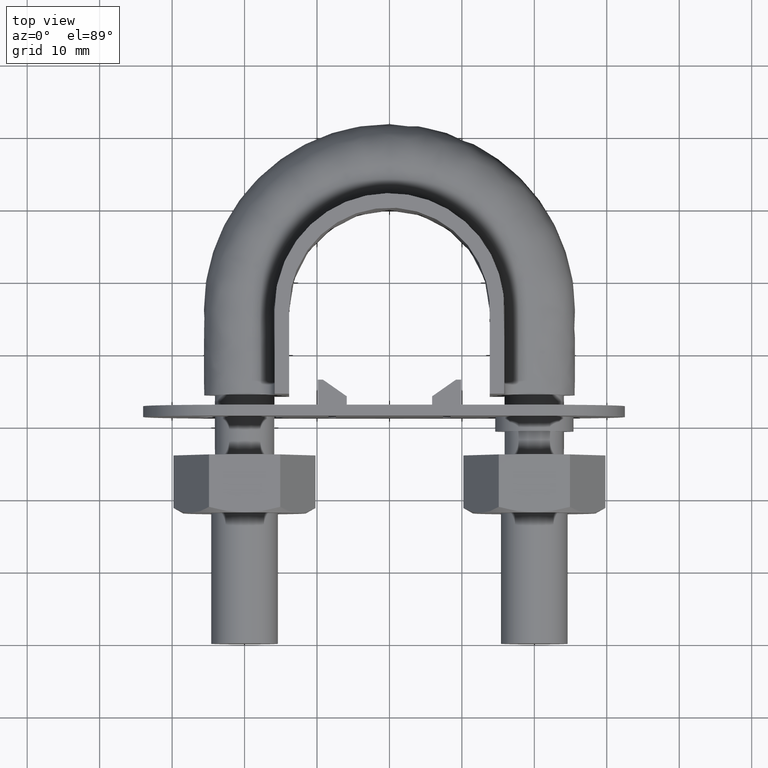
[diagram: clean part render]
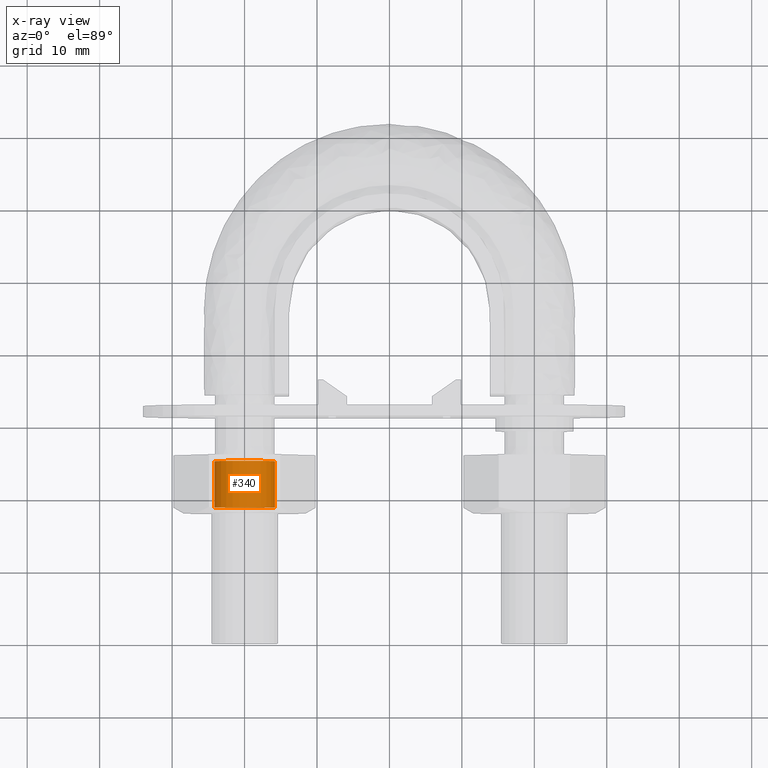
[diagram: x-ray — body ghosted, one internal face saturated and labeled with its STEP entity id]
A machine part, top view, then the same camera in x-ray: the body is ghosted and one INTERNAL B-rep face — a face not visible from any outside direction — is saturated and labeled: STEP entity #340.
In plain terms, the highlighted cylindrical surface (bore or boss wall) has radius 4.188 mm, axis along (-0, -1, -0).
Its self-contained STEP definition (entity closure, byte-faithful):
#340 = ADVANCED_FACE( '', ( #533, #534 ), #535, .F. );
#533 = FACE_OUTER_BOUND( '', #1476, .T. );
#534 = FACE_OUTER_BOUND( '', #1477, .T. );
#535 = CYLINDRICAL_SURFACE( '', #1478, 4.18800000000000 );
#1476 = EDGE_LOOP( '', ( #2094 ) );
#1477 = EDGE_LOOP( '', ( #2095 ) );
#1478 = AXIS2_PLACEMENT_3D( '', #2096, #2097, #2098 );
#2094 = ORIENTED_EDGE( '', *, *, #2436, .T. );
#2095 = ORIENTED_EDGE( '', *, *, #2435, .F. );
#2096 = CARTESIAN_POINT( '', ( -20.0000000000000, 26.0000000000000, 1.59198825996908E-015 ) );
#2097 = DIRECTION( '', ( -4.89842541528951E-016, -1.00000000000000, -6.12303176911189E-017 ) );
#2098 = DIRECTION( '', ( -0.866025409447909, 4.54831245837540E-016, -0.499999990190582 ) );
#2435 = EDGE_CURVE( '', #2755, #2755, #2756, .T. );
#2436 = EDGE_CURVE( '', #2757, #2757, #2758, .T. );
#2755 = VERTEX_POINT( '', #3439 );
#2756 = CIRCLE( '', #3440, 4.18800000000000 );
#2757 = VERTEX_POINT( '', #3441 );
#2758 = CIRCLE( '', #3442, 4.18800000000000 );
#3439 = CARTESIAN_POINT( '', ( -23.6269144147678, 18.8120000000033, -2.09399995891815 ) );
#3440 = AXIS2_PLACEMENT_3D( '', #3831, #3832, #3833 );
#3441 = CARTESIAN_POINT( '', ( -23.6269144147678, 25.1880000000004, -2.09399995891815 ) );
#3442 = AXIS2_PLACEMENT_3D( '', #3834, #3835, #3836 );
#3831 = CARTESIAN_POINT( '', ( -20.0000000000000, 18.8120000000033, 1.15186473640553E-015 ) );
#3832 = DIRECTION( '', ( 4.89842541528951E-016, 1.00000000000000, 6.12303176911189E-017 ) );
#3833 = DIRECTION( '', ( -0.866025409447909, 4.54831245837540E-016, -0.499999990190582 ) );
#3834 = CARTESIAN_POINT( '', ( -20.0000000000000, 25.1880000000004, 1.54226924200392E-015 ) );
#3835 = DIRECTION( '', ( 4.89842541528951E-016, 1.00000000000000, 6.12303176911189E-017 ) );
#3836 = DIRECTION( '', ( -0.866025409447909, 4.54831245837540E-016, -0.499999990190582 ) );